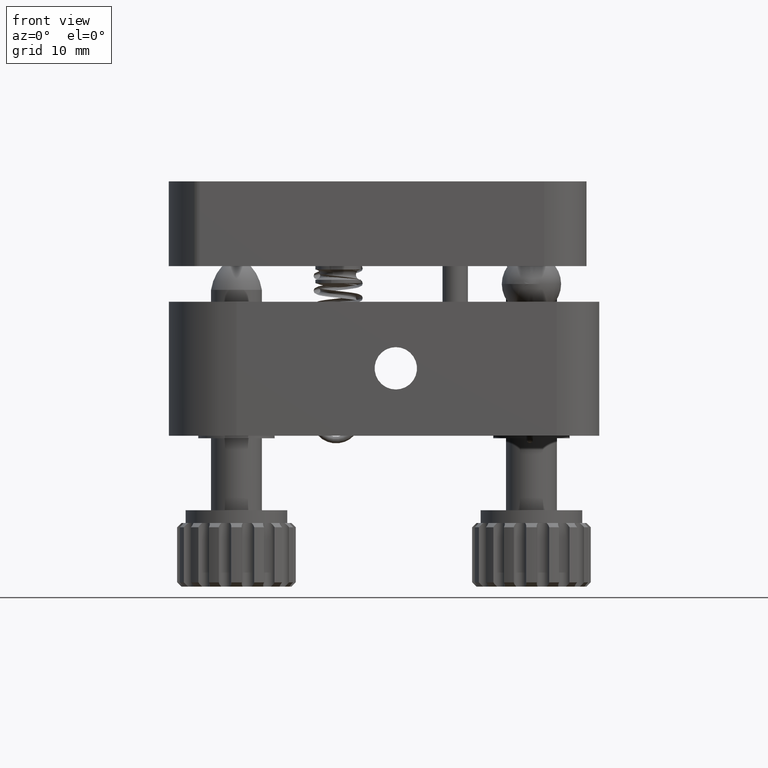
[diagram: clean part render]
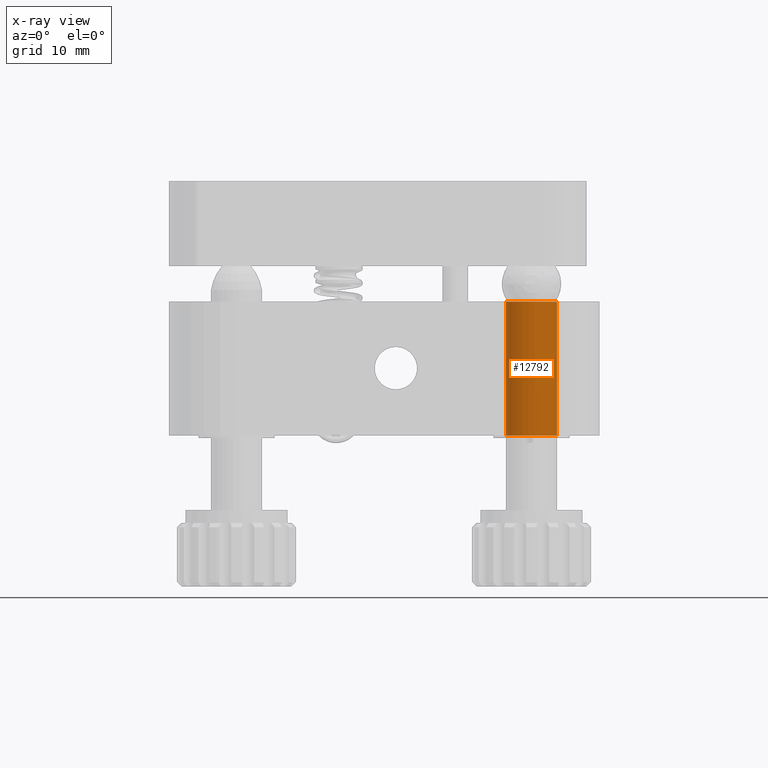
[diagram: x-ray — body ghosted, one internal face saturated and labeled with its STEP entity id]
A machine part, front view, then the same camera in x-ray: the body is ghosted and one INTERNAL B-rep face — a face not visible from any outside direction — is saturated and labeled: STEP entity #12792.
In plain terms, the highlighted cylindrical surface (edge-blend (fillet) strip) has radius 3 mm, axis along (-0, -0, -1).
Its self-contained STEP definition (entity closure, byte-faithful):
#88 = EDGE_CURVE ( 'NONE', #20079, #11634, #33641, .T. ) ;
#1859 = DIRECTION ( 'NONE',  ( 0.0000000000000000000, 0.0000000000000000000, -1.000000000000000000 ) ) ;
#3029 = CARTESIAN_POINT ( 'NONE',  ( 16.81214223222097800, 17.40583885347699300, 42.20000000000000300 ) ) ;
#3672 = CARTESIAN_POINT ( 'NONE',  ( 13.81214223222097800, 17.40583885347699300, 26.39999999999999900 ) ) ;
#4511 = DIRECTION ( 'NONE',  ( -0.0000000000000000000, -0.0000000000000000000, -1.000000000000000000 ) ) ;
#5465 = ORIENTED_EDGE ( 'NONE', *, *, #32013, .F. ) ;
#6499 = DIRECTION ( 'NONE',  ( -1.000000000000000000, 0.0000000000000000000, 0.0000000000000000000 ) ) ;
#7625 = CYLINDRICAL_SURFACE ( 'NONE', #33481, 2.999999999999999100 ) ;
#8067 = VERTEX_POINT ( 'NONE', #21715 ) ;
#8503 = ORIENTED_EDGE ( 'NONE', *, *, #22374, .F. ) ;
#9442 = EDGE_LOOP ( 'NONE', ( #8503, #15518, #24782, #5465 ) ) ;
#11634 = VERTEX_POINT ( 'NONE', #33066 ) ;
#12246 = VECTOR ( 'NONE', #17207, 1000.000000000000000 ) ;
#12792 = ADVANCED_FACE ( 'NONE', ( #32523 ), #7625, .F. ) ;
#13473 = CARTESIAN_POINT ( 'NONE',  ( 16.81214223222097800, 17.40583885347699300, 42.20000000000000300 ) ) ;
#15448 = LINE ( 'NONE', #29018, #29427 ) ;
#15518 = ORIENTED_EDGE ( 'NONE', *, *, #88, .T. ) ;
#16916 = VERTEX_POINT ( 'NONE', #17389 ) ;
#17207 = DIRECTION ( 'NONE',  ( -0.0000000000000000000, -0.0000000000000000000, -1.000000000000000000 ) ) ;
#17389 = CARTESIAN_POINT ( 'NONE',  ( 10.81214223222097800, 17.40583885347699300, 42.20000000000000300 ) ) ;
#18635 = CARTESIAN_POINT ( 'NONE',  ( 13.81214223222097800, 17.40583885347699300, 42.20000000000000300 ) ) ;
#20079 = VERTEX_POINT ( 'NONE', #13473 ) ;
#21494 = DIRECTION ( 'NONE',  ( -1.000000000000000000, 0.0000000000000000000, 0.0000000000000000000 ) ) ;
#21715 = CARTESIAN_POINT ( 'NONE',  ( 10.81214223222097800, 17.40583885347699300, 26.39999999999999900 ) ) ;
#21731 = EDGE_CURVE ( 'NONE', #11634, #8067, #33129, .T. ) ;
#22374 = EDGE_CURVE ( 'NONE', #20079, #16916, #23036, .T. ) ;
#22661 = AXIS2_PLACEMENT_3D ( 'NONE', #3672, #23243, #6499 ) ;
#23036 = CIRCLE ( 'NONE', #28033, 2.999999999999999100 ) ;
#23243 = DIRECTION ( 'NONE',  ( 0.0000000000000000000, 0.0000000000000000000, -1.000000000000000000 ) ) ;
#23413 = DIRECTION ( 'NONE',  ( -0.0000000000000000000, -0.0000000000000000000, -1.000000000000000000 ) ) ;
#24782 = ORIENTED_EDGE ( 'NONE', *, *, #21731, .T. ) ;
#28033 = AXIS2_PLACEMENT_3D ( 'NONE', #18635, #1859, #21494 ) ;
#29018 = CARTESIAN_POINT ( 'NONE',  ( 10.81214223222097800, 17.40583885347699300, 42.20000000000000300 ) ) ;
#29427 = VECTOR ( 'NONE', #23413, 1000.000000000000000 ) ;
#29701 = CARTESIAN_POINT ( 'NONE',  ( 13.81214223222097800, 17.40583885347699300, 42.20000000000000300 ) ) ;
#29818 = DIRECTION ( 'NONE',  ( -1.000000000000000000, 0.0000000000000000000, 0.0000000000000000000 ) ) ;
#32013 = EDGE_CURVE ( 'NONE', #16916, #8067, #15448, .T. ) ;
#32523 = FACE_OUTER_BOUND ( 'NONE', #9442, .T. ) ;
#33066 = CARTESIAN_POINT ( 'NONE',  ( 16.81214223222097800, 17.40583885347699300, 26.39999999999999900 ) ) ;
#33129 = CIRCLE ( 'NONE', #22661, 2.999999999999999100 ) ;
#33481 = AXIS2_PLACEMENT_3D ( 'NONE', #29701, #4511, #29818 ) ;
#33641 = LINE ( 'NONE', #3029, #12246 ) ;